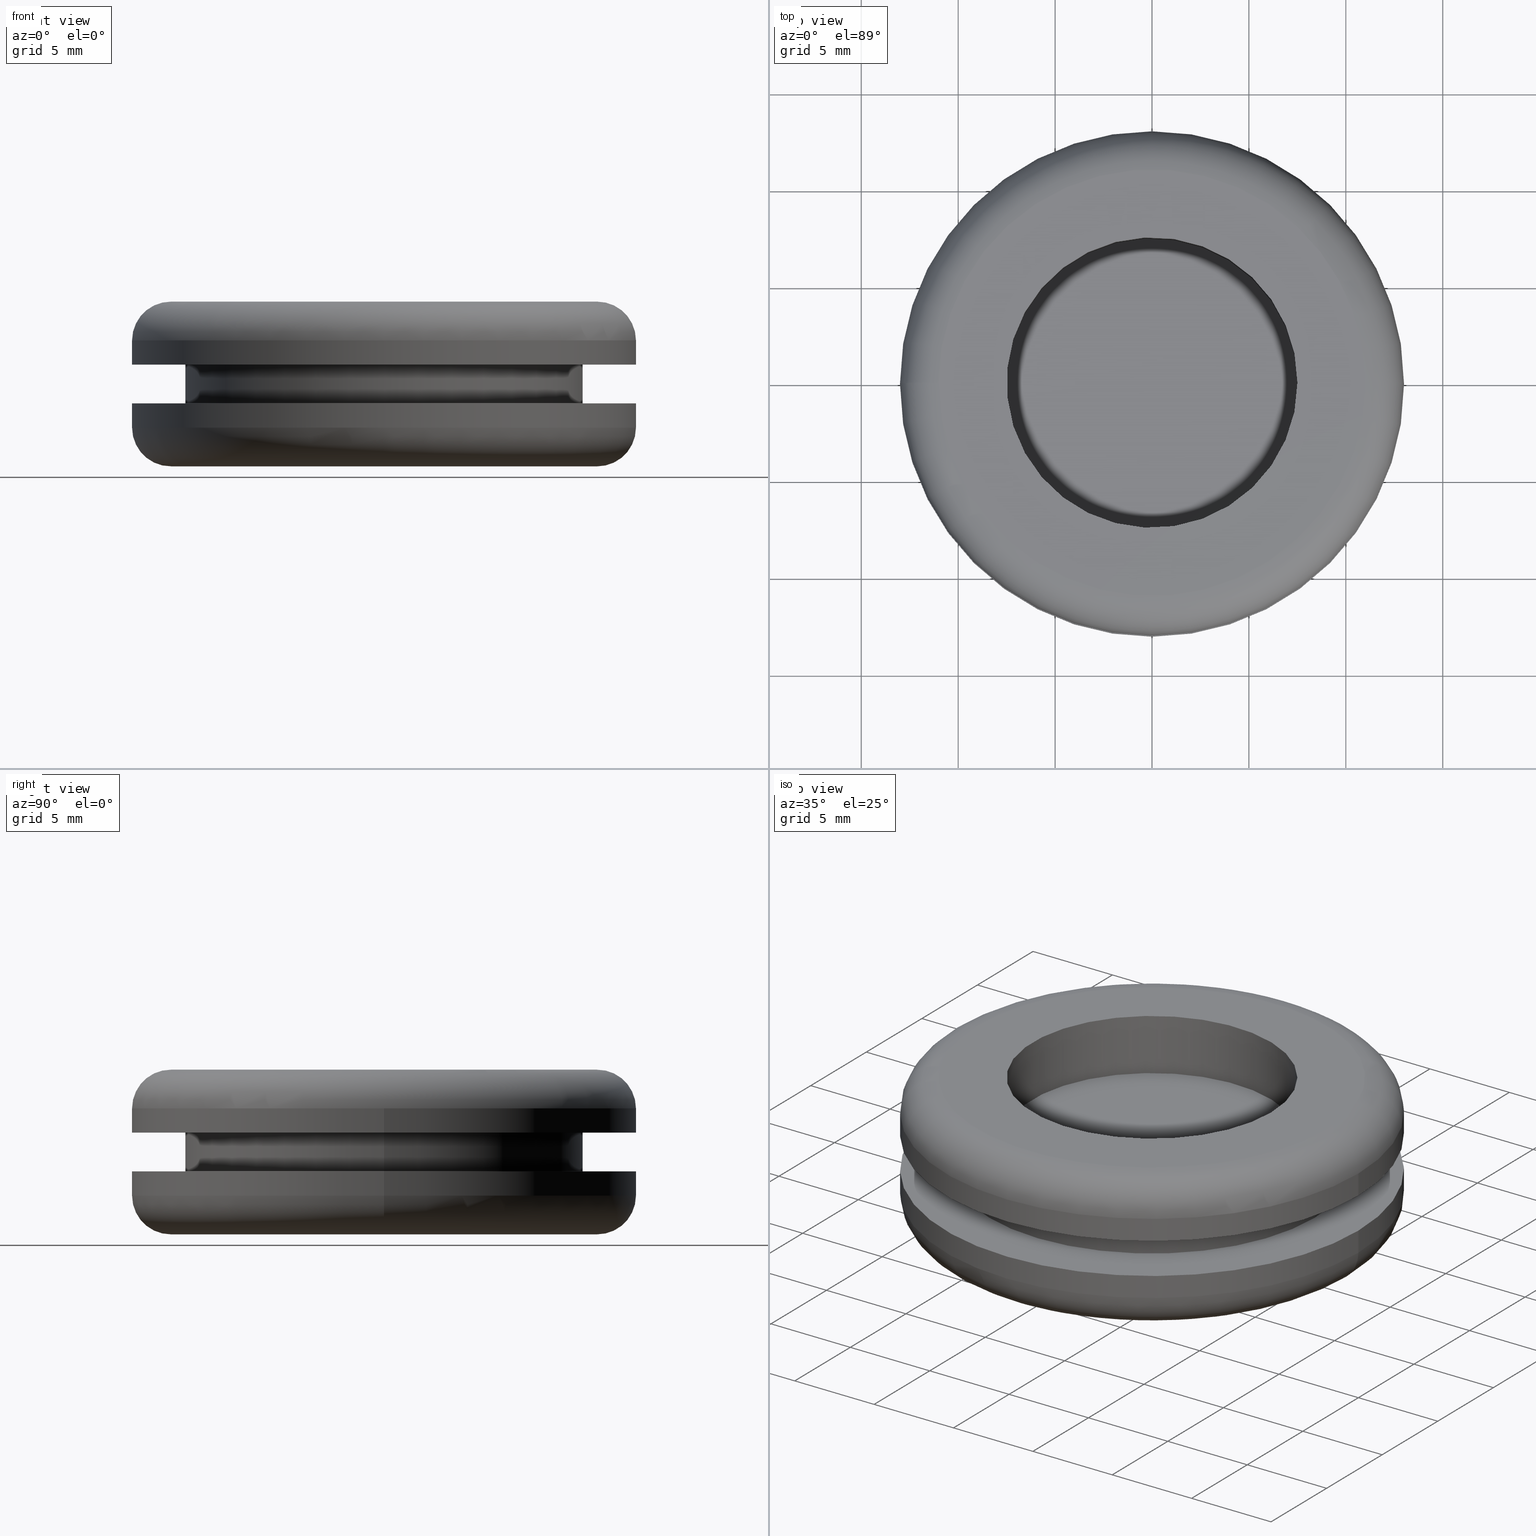
[diagram: canonical four-view strip — front | top / right | iso, engineering-drawing reading convention]
A machine part, canonical four-view strip (front | top / right | iso — engineering-drawing reading convention). The complete STEP part file that produces these views, byte-faithful:
ISO-10303-21;
HEADER;
/* Generated by software containing ST-Developer
 * from STEP Tools, Inc. (www.steptools.com) 
 */

FILE_DESCRIPTION(
/* description */ ('PRESSACAVO . IPC1015 GOMMA \X\D826'),
/* implementation_level */ '2;1');

FILE_NAME(
/* name */ 
'Q:\\Catalogo\\3_Profili e accessori MACAP\\Per Download Web e catalog
o artaceo\\ACCESSORI\\PAGINA 68\\CMEGC0000017 - XE45112G.stp',
/* time_stamp */ '2019-12-16T16:55:39+01:00',
/* author */ ('fzagni'),
/* organization */ (''),
/* preprocessor_version */ 'ST-DEVELOPER v17.2',
/* originating_system */ 'Autodesk Inventor 2019',
/* authorisation */ '');

FILE_SCHEMA (('AUTOMOTIVE_DESIGN { 1 0 10303 214 3 1 1 }'));
ENDSEC;

DATA;
#10=MECHANICAL_DESIGN_GEOMETRIC_PRESENTATION_REPRESENTATION('',(#13),#384);
#11=SHAPE_REPRESENTATION_RELATIONSHIP('SRR','None',#391,#12);
#12=ADVANCED_BREP_SHAPE_REPRESENTATION('',(#14),#383);
#13=STYLED_ITEM('',(#400),#14);
#14=MANIFOLD_SOLID_BREP('Solido1',#198);
#15=FACE_BOUND('',#54,.T.);
#16=FACE_BOUND('',#59,.T.);
#17=FACE_BOUND('',#62,.T.);
#18=FACE_BOUND('',#64,.T.);
#19=TOROIDAL_SURFACE('',#224,11.,2.);
#20=TOROIDAL_SURFACE('',#233,11.,2.);
#21=LINE('',#333,#26);
#22=LINE('',#348,#27);
#23=LINE('',#362,#28);
#24=LINE('',#372,#29);
#25=LINE('',#380,#30);
#26=VECTOR('',#263,7.5);
#27=VECTOR('',#282,13.);
#28=VECTOR('',#299,13.);
#29=VECTOR('',#310,10.25);
#30=VECTOR('',#323,7.5);
#31=CYLINDRICAL_SURFACE('',#222,7.5);
#32=CYLINDRICAL_SURFACE('',#230,13.);
#33=CYLINDRICAL_SURFACE('',#239,13.);
#34=CYLINDRICAL_SURFACE('',#243,10.25);
#35=CYLINDRICAL_SURFACE('',#250,7.5);
#36=FACE_OUTER_BOUND('',#49,.T.);
#37=FACE_OUTER_BOUND('',#50,.T.);
#38=FACE_OUTER_BOUND('',#51,.T.);
#39=FACE_OUTER_BOUND('',#52,.T.);
#40=FACE_OUTER_BOUND('',#53,.T.);
#41=FACE_OUTER_BOUND('',#55,.T.);
#42=FACE_OUTER_BOUND('',#56,.T.);
#43=FACE_OUTER_BOUND('',#57,.T.);
#44=FACE_OUTER_BOUND('',#58,.T.);
#45=FACE_OUTER_BOUND('',#60,.T.);
#46=FACE_OUTER_BOUND('',#61,.T.);
#47=FACE_OUTER_BOUND('',#63,.T.);
#48=FACE_OUTER_BOUND('',#65,.T.);
#49=EDGE_LOOP('',(#129));
#50=EDGE_LOOP('',(#130));
#51=EDGE_LOOP('',(#131,#132,#133,#134));
#52=EDGE_LOOP('',(#135,#136,#137,#138));
#53=EDGE_LOOP('',(#139));
#54=EDGE_LOOP('',(#140));
#55=EDGE_LOOP('',(#141,#142,#143,#144,#145));
#56=EDGE_LOOP('',(#146,#147,#148,#149,#150,#151));
#57=EDGE_LOOP('',(#152,#153,#154,#155,#156,#157));
#58=EDGE_LOOP('',(#158,#159));
#59=EDGE_LOOP('',(#160));
#60=EDGE_LOOP('',(#161,#162,#163,#164,#165,#166));
#61=EDGE_LOOP('',(#167,#168));
#62=EDGE_LOOP('',(#169,#170));
#63=EDGE_LOOP('',(#171,#172));
#64=EDGE_LOOP('',(#173,#174));
#65=EDGE_LOOP('',(#175,#176,#177,#178));
#66=CIRCLE('',#219,7.5);
#67=CIRCLE('',#221,7.5);
#68=CIRCLE('',#223,7.5);
#69=CIRCLE('',#225,11.);
#70=CIRCLE('',#226,2.);
#71=CIRCLE('',#227,13.);
#72=CIRCLE('',#229,7.5);
#73=CIRCLE('',#231,13.);
#74=CIRCLE('',#232,13.);
#75=CIRCLE('',#234,11.);
#76=CIRCLE('',#235,2.);
#77=CIRCLE('',#236,13.);
#78=CIRCLE('',#237,13.);
#79=CIRCLE('',#238,11.);
#80=CIRCLE('',#240,13.);
#81=CIRCLE('',#241,13.);
#82=CIRCLE('',#244,10.25);
#83=CIRCLE('',#245,10.25);
#84=CIRCLE('',#246,10.25);
#85=CIRCLE('',#247,10.25);
#86=VERTEX_POINT('',#326);
#87=VERTEX_POINT('',#329);
#88=VERTEX_POINT('',#332);
#89=VERTEX_POINT('',#336);
#90=VERTEX_POINT('',#338);
#91=VERTEX_POINT('',#342);
#92=VERTEX_POINT('',#345);
#93=VERTEX_POINT('',#346);
#94=VERTEX_POINT('',#351);
#95=VERTEX_POINT('',#352);
#96=VERTEX_POINT('',#354);
#97=VERTEX_POINT('',#356);
#98=VERTEX_POINT('',#361);
#99=VERTEX_POINT('',#363);
#100=VERTEX_POINT('',#368);
#101=VERTEX_POINT('',#369);
#102=VERTEX_POINT('',#371);
#103=VERTEX_POINT('',#373);
#104=EDGE_CURVE('',#86,#86,#66,.T.);
#105=EDGE_CURVE('',#87,#87,#67,.T.);
#106=EDGE_CURVE('',#87,#88,#21,.T.);
#107=EDGE_CURVE('',#88,#88,#68,.T.);
#108=EDGE_CURVE('',#89,#89,#69,.T.);
#109=EDGE_CURVE('',#89,#90,#70,.T.);
#110=EDGE_CURVE('',#90,#90,#71,.T.);
#111=EDGE_CURVE('',#91,#91,#72,.T.);
#112=EDGE_CURVE('',#92,#93,#73,.T.);
#113=EDGE_CURVE('',#93,#90,#22,.T.);
#114=EDGE_CURVE('',#93,#92,#74,.T.);
#115=EDGE_CURVE('',#94,#95,#75,.T.);
#116=EDGE_CURVE('',#95,#96,#76,.T.);
#117=EDGE_CURVE('',#96,#97,#77,.T.);
#118=EDGE_CURVE('',#97,#96,#78,.T.);
#119=EDGE_CURVE('',#95,#94,#79,.T.);
#120=EDGE_CURVE('',#97,#98,#23,.T.);
#121=EDGE_CURVE('',#98,#99,#80,.T.);
#122=EDGE_CURVE('',#99,#98,#81,.T.);
#123=EDGE_CURVE('',#100,#101,#82,.T.);
#124=EDGE_CURVE('',#101,#102,#24,.T.);
#125=EDGE_CURVE('',#103,#102,#83,.T.);
#126=EDGE_CURVE('',#102,#103,#84,.T.);
#127=EDGE_CURVE('',#101,#100,#85,.T.);
#128=EDGE_CURVE('',#91,#86,#25,.T.);
#129=ORIENTED_EDGE('',*,*,#104,.F.);
#130=ORIENTED_EDGE('',*,*,#105,.F.);
#131=ORIENTED_EDGE('',*,*,#105,.T.);
#132=ORIENTED_EDGE('',*,*,#106,.T.);
#133=ORIENTED_EDGE('',*,*,#107,.F.);
#134=ORIENTED_EDGE('',*,*,#106,.F.);
#135=ORIENTED_EDGE('',*,*,#108,.T.);
#136=ORIENTED_EDGE('',*,*,#109,.T.);
#137=ORIENTED_EDGE('',*,*,#110,.T.);
#138=ORIENTED_EDGE('',*,*,#109,.F.);
#139=ORIENTED_EDGE('',*,*,#108,.F.);
#140=ORIENTED_EDGE('',*,*,#111,.T.);
#141=ORIENTED_EDGE('',*,*,#112,.T.);
#142=ORIENTED_EDGE('',*,*,#113,.T.);
#143=ORIENTED_EDGE('',*,*,#110,.F.);
#144=ORIENTED_EDGE('',*,*,#113,.F.);
#145=ORIENTED_EDGE('',*,*,#114,.T.);
#146=ORIENTED_EDGE('',*,*,#115,.T.);
#147=ORIENTED_EDGE('',*,*,#116,.T.);
#148=ORIENTED_EDGE('',*,*,#117,.T.);
#149=ORIENTED_EDGE('',*,*,#118,.T.);
#150=ORIENTED_EDGE('',*,*,#116,.F.);
#151=ORIENTED_EDGE('',*,*,#119,.T.);
#152=ORIENTED_EDGE('',*,*,#118,.F.);
#153=ORIENTED_EDGE('',*,*,#120,.T.);
#154=ORIENTED_EDGE('',*,*,#121,.T.);
#155=ORIENTED_EDGE('',*,*,#122,.T.);
#156=ORIENTED_EDGE('',*,*,#120,.F.);
#157=ORIENTED_EDGE('',*,*,#117,.F.);
#158=ORIENTED_EDGE('',*,*,#115,.F.);
#159=ORIENTED_EDGE('',*,*,#119,.F.);
#160=ORIENTED_EDGE('',*,*,#107,.T.);
#161=ORIENTED_EDGE('',*,*,#123,.T.);
#162=ORIENTED_EDGE('',*,*,#124,.T.);
#163=ORIENTED_EDGE('',*,*,#125,.F.);
#164=ORIENTED_EDGE('',*,*,#126,.F.);
#165=ORIENTED_EDGE('',*,*,#124,.F.);
#166=ORIENTED_EDGE('',*,*,#127,.T.);
#167=ORIENTED_EDGE('',*,*,#112,.F.);
#168=ORIENTED_EDGE('',*,*,#114,.F.);
#169=ORIENTED_EDGE('',*,*,#123,.F.);
#170=ORIENTED_EDGE('',*,*,#127,.F.);
#171=ORIENTED_EDGE('',*,*,#122,.F.);
#172=ORIENTED_EDGE('',*,*,#121,.F.);
#173=ORIENTED_EDGE('',*,*,#125,.T.);
#174=ORIENTED_EDGE('',*,*,#126,.T.);
#175=ORIENTED_EDGE('',*,*,#111,.F.);
#176=ORIENTED_EDGE('',*,*,#128,.T.);
#177=ORIENTED_EDGE('',*,*,#104,.T.);
#178=ORIENTED_EDGE('',*,*,#128,.F.);
#179=PLANE('',#218);
#180=PLANE('',#220);
#181=PLANE('',#228);
#182=PLANE('',#242);
#183=PLANE('',#248);
#184=PLANE('',#249);
#185=ADVANCED_FACE('',(#36),#179,.F.);
#186=ADVANCED_FACE('',(#37),#180,.T.);
#187=ADVANCED_FACE('',(#38),#31,.F.);
#188=ADVANCED_FACE('',(#39),#19,.T.);
#189=ADVANCED_FACE('',(#40,#15),#181,.F.);
#190=ADVANCED_FACE('',(#41),#32,.T.);
#191=ADVANCED_FACE('',(#42),#20,.T.);
#192=ADVANCED_FACE('',(#43),#33,.T.);
#193=ADVANCED_FACE('',(#44,#16),#182,.T.);
#194=ADVANCED_FACE('',(#45),#34,.T.);
#195=ADVANCED_FACE('',(#46,#17),#183,.F.);
#196=ADVANCED_FACE('',(#47,#18),#184,.F.);
#197=ADVANCED_FACE('',(#48),#35,.F.);
#198=CLOSED_SHELL('',(#185,#186,#187,#188,#189,#190,#191,#192,#193,#194,
#195,#196,#197));
#199=DERIVED_UNIT_ELEMENT(#201,1.);
#200=DERIVED_UNIT_ELEMENT(#386,3.);
#201=(
MASS_UNIT()
NAMED_UNIT(*)
SI_UNIT($,.GRAM.)
);
#202=DERIVED_UNIT((#199,#200));
#203=MEASURE_REPRESENTATION_ITEM('density measure',
POSITIVE_RATIO_MEASURE(0.5),#202);
#204=PROPERTY_DEFINITION_REPRESENTATION(#209,#206);
#205=PROPERTY_DEFINITION_REPRESENTATION(#210,#207);
#206=REPRESENTATION('material name',(#208),#383);
#207=REPRESENTATION('density',(#203),#383);
#208=DESCRIPTIVE_REPRESENTATION_ITEM('PVC Nero','PVC Nero');
#209=PROPERTY_DEFINITION('material property','material name',#393);
#210=PROPERTY_DEFINITION('material property','density of part',#393);
#211=DATE_TIME_ROLE('creation_date');
#212=APPLIED_DATE_AND_TIME_ASSIGNMENT(#213,#211,(#393));
#213=DATE_AND_TIME(#214,#215);
#214=CALENDAR_DATE(2018,23,1);
#215=LOCAL_TIME(12,55,49.,#216);
#216=COORDINATED_UNIVERSAL_TIME_OFFSET(0,0,.BEHIND.);
#217=AXIS2_PLACEMENT_3D('placement',#324,#251,#252);
#218=AXIS2_PLACEMENT_3D('',#325,#253,#254);
#219=AXIS2_PLACEMENT_3D('',#327,#255,#256);
#220=AXIS2_PLACEMENT_3D('',#328,#257,#258);
#221=AXIS2_PLACEMENT_3D('',#330,#259,#260);
#222=AXIS2_PLACEMENT_3D('',#331,#261,#262);
#223=AXIS2_PLACEMENT_3D('',#334,#264,#265);
#224=AXIS2_PLACEMENT_3D('',#335,#266,#267);
#225=AXIS2_PLACEMENT_3D('',#337,#268,#269);
#226=AXIS2_PLACEMENT_3D('',#339,#270,#271);
#227=AXIS2_PLACEMENT_3D('',#340,#272,#273);
#228=AXIS2_PLACEMENT_3D('',#341,#274,#275);
#229=AXIS2_PLACEMENT_3D('',#343,#276,#277);
#230=AXIS2_PLACEMENT_3D('',#344,#278,#279);
#231=AXIS2_PLACEMENT_3D('',#347,#280,#281);
#232=AXIS2_PLACEMENT_3D('',#349,#283,#284);
#233=AXIS2_PLACEMENT_3D('',#350,#285,#286);
#234=AXIS2_PLACEMENT_3D('',#353,#287,#288);
#235=AXIS2_PLACEMENT_3D('',#355,#289,#290);
#236=AXIS2_PLACEMENT_3D('',#357,#291,#292);
#237=AXIS2_PLACEMENT_3D('',#358,#293,#294);
#238=AXIS2_PLACEMENT_3D('',#359,#295,#296);
#239=AXIS2_PLACEMENT_3D('',#360,#297,#298);
#240=AXIS2_PLACEMENT_3D('',#364,#300,#301);
#241=AXIS2_PLACEMENT_3D('',#365,#302,#303);
#242=AXIS2_PLACEMENT_3D('',#366,#304,#305);
#243=AXIS2_PLACEMENT_3D('',#367,#306,#307);
#244=AXIS2_PLACEMENT_3D('',#370,#308,#309);
#245=AXIS2_PLACEMENT_3D('',#374,#311,#312);
#246=AXIS2_PLACEMENT_3D('',#375,#313,#314);
#247=AXIS2_PLACEMENT_3D('',#376,#315,#316);
#248=AXIS2_PLACEMENT_3D('',#377,#317,#318);
#249=AXIS2_PLACEMENT_3D('',#378,#319,#320);
#250=AXIS2_PLACEMENT_3D('',#379,#321,#322);
#251=DIRECTION('axis',(0.,0.,1.));
#252=DIRECTION('refdir',(1.,0.,0.));
#253=DIRECTION('center_axis',(0.,0.,1.));
#254=DIRECTION('ref_axis',(1.,0.,0.));
#255=DIRECTION('center_axis',(0.,0.,1.));
#256=DIRECTION('ref_axis',(-1.,0.,0.));
#257=DIRECTION('center_axis',(0.,0.,1.));
#258=DIRECTION('ref_axis',(1.,0.,0.));
#259=DIRECTION('center_axis',(0.,0.,-1.));
#260=DIRECTION('ref_axis',(-1.,0.,0.));
#261=DIRECTION('center_axis',(0.,0.,1.));
#262=DIRECTION('ref_axis',(-1.,0.,0.));
#263=DIRECTION('',(0.,0.,1.));
#264=DIRECTION('center_axis',(0.,0.,-1.));
#265=DIRECTION('ref_axis',(-1.,0.,0.));
#266=DIRECTION('center_axis',(0.,0.,-1.));
#267=DIRECTION('ref_axis',(-1.,0.,0.));
#268=DIRECTION('center_axis',(0.,0.,1.));
#269=DIRECTION('ref_axis',(-1.,0.,0.));
#270=DIRECTION('center_axis',(-1.22464679914735E-16,-1.,0.));
#271=DIRECTION('ref_axis',(1.,-1.22464679914735E-16,0.));
#272=DIRECTION('center_axis',(0.,0.,-1.));
#273=DIRECTION('ref_axis',(-1.,0.,0.));
#274=DIRECTION('center_axis',(0.,0.,1.));
#275=DIRECTION('ref_axis',(1.,0.,0.));
#276=DIRECTION('center_axis',(0.,0.,1.));
#277=DIRECTION('ref_axis',(-1.,0.,0.));
#278=DIRECTION('center_axis',(0.,0.,1.));
#279=DIRECTION('ref_axis',(-1.,0.,0.));
#280=DIRECTION('center_axis',(0.,0.,-1.));
#281=DIRECTION('ref_axis',(-1.,0.,0.));
#282=DIRECTION('',(0.,0.,-1.));
#283=DIRECTION('center_axis',(0.,0.,-1.));
#284=DIRECTION('ref_axis',(-1.,0.,0.));
#285=DIRECTION('center_axis',(0.,0.,1.));
#286=DIRECTION('ref_axis',(1.,0.,0.));
#287=DIRECTION('center_axis',(0.,0.,-1.));
#288=DIRECTION('ref_axis',(-1.,0.,0.));
#289=DIRECTION('center_axis',(1.22464679914735E-16,-1.,0.));
#290=DIRECTION('ref_axis',(-1.,-1.22464679914735E-16,0.));
#291=DIRECTION('center_axis',(0.,0.,1.));
#292=DIRECTION('ref_axis',(-1.,0.,0.));
#293=DIRECTION('center_axis',(0.,0.,1.));
#294=DIRECTION('ref_axis',(-1.,0.,0.));
#295=DIRECTION('center_axis',(0.,0.,-1.));
#296=DIRECTION('ref_axis',(-1.,0.,0.));
#297=DIRECTION('center_axis',(0.,0.,1.));
#298=DIRECTION('ref_axis',(-1.,0.,0.));
#299=DIRECTION('',(0.,0.,-1.));
#300=DIRECTION('center_axis',(0.,0.,1.));
#301=DIRECTION('ref_axis',(-1.,0.,0.));
#302=DIRECTION('center_axis',(0.,0.,1.));
#303=DIRECTION('ref_axis',(-1.,0.,0.));
#304=DIRECTION('center_axis',(0.,0.,1.));
#305=DIRECTION('ref_axis',(1.,0.,0.));
#306=DIRECTION('center_axis',(0.,0.,1.));
#307=DIRECTION('ref_axis',(-1.,0.,0.));
#308=DIRECTION('center_axis',(0.,0.,1.));
#309=DIRECTION('ref_axis',(1.,0.,0.));
#310=DIRECTION('',(0.,0.,1.));
#311=DIRECTION('center_axis',(0.,0.,1.));
#312=DIRECTION('ref_axis',(1.,0.,0.));
#313=DIRECTION('center_axis',(0.,0.,1.));
#314=DIRECTION('ref_axis',(1.,0.,0.));
#315=DIRECTION('center_axis',(0.,0.,1.));
#316=DIRECTION('ref_axis',(1.,0.,0.));
#317=DIRECTION('center_axis',(0.,0.,-1.));
#318=DIRECTION('ref_axis',(-1.,0.,0.));
#319=DIRECTION('center_axis',(0.,0.,1.));
#320=DIRECTION('ref_axis',(1.,0.,0.));
#321=DIRECTION('center_axis',(0.,0.,1.));
#322=DIRECTION('ref_axis',(-1.,0.,0.));
#323=DIRECTION('',(0.,0.,1.));
#324=CARTESIAN_POINT('',(0.,0.,0.));
#325=CARTESIAN_POINT('Origin',(-3.23256652641189E-16,1.2335811384724E-16,
-1.));
#326=CARTESIAN_POINT('',(7.5,9.18485099360515E-16,-1.));
#327=CARTESIAN_POINT('Origin',(0.,0.,-1.));
#328=CARTESIAN_POINT('Origin',(-3.23256652641189E-16,1.2335811384724E-16,
1.));
#329=CARTESIAN_POINT('',(7.5,9.18485099360515E-16,1.));
#330=CARTESIAN_POINT('Origin',(0.,0.,1.));
#331=CARTESIAN_POINT('Origin',(0.,0.,0.));
#332=CARTESIAN_POINT('',(7.5,9.18485099360515E-16,4.25));
#333=CARTESIAN_POINT('',(7.5,9.18485099360515E-16,0.));
#334=CARTESIAN_POINT('Origin',(0.,0.,4.25));
#335=CARTESIAN_POINT('Origin',(0.,0.,-2.25));
#336=CARTESIAN_POINT('',(11.,1.34711147906209E-15,-4.25));
#337=CARTESIAN_POINT('Origin',(0.,0.,-4.25));
#338=CARTESIAN_POINT('',(13.,-1.59204083889156E-15,-2.25));
#339=CARTESIAN_POINT('Origin',(11.,-1.34711147906209E-15,-2.25));
#340=CARTESIAN_POINT('Origin',(0.,0.,-2.25));
#341=CARTESIAN_POINT('Origin',(-1.3267006990763E-16,0.,-4.25));
#342=CARTESIAN_POINT('',(7.5,9.18485099360515E-16,-4.25));
#343=CARTESIAN_POINT('Origin',(0.,0.,-4.25));
#344=CARTESIAN_POINT('Origin',(0.,0.,0.));
#345=CARTESIAN_POINT('',(-13.,0.,-1.));
#346=CARTESIAN_POINT('',(13.,1.59204083889156E-15,-1.));
#347=CARTESIAN_POINT('Origin',(0.,0.,-1.));
#348=CARTESIAN_POINT('',(13.,1.59204083889156E-15,0.));
#349=CARTESIAN_POINT('Origin',(0.,0.,-1.));
#350=CARTESIAN_POINT('Origin',(0.,0.,2.25));
#351=CARTESIAN_POINT('',(11.,-1.34711147906209E-15,4.25));
#352=CARTESIAN_POINT('',(-11.,-1.34711147906209E-15,4.25));
#353=CARTESIAN_POINT('Origin',(0.,0.,4.25));
#354=CARTESIAN_POINT('',(-13.,-1.59204083889156E-15,2.25));
#355=CARTESIAN_POINT('Origin',(-11.,-1.34711147906209E-15,2.25));
#356=CARTESIAN_POINT('',(13.,1.59204083889156E-15,2.25));
#357=CARTESIAN_POINT('Origin',(0.,0.,2.25));
#358=CARTESIAN_POINT('Origin',(0.,0.,2.25));
#359=CARTESIAN_POINT('Origin',(0.,0.,4.25));
#360=CARTESIAN_POINT('Origin',(0.,0.,0.));
#361=CARTESIAN_POINT('',(13.,1.59204083889156E-15,1.));
#362=CARTESIAN_POINT('',(13.,1.59204083889156E-15,0.));
#363=CARTESIAN_POINT('',(-13.,0.,1.));
#364=CARTESIAN_POINT('Origin',(0.,0.,1.));
#365=CARTESIAN_POINT('Origin',(0.,0.,1.));
#366=CARTESIAN_POINT('Origin',(-1.3267006990763E-16,0.,4.25));
#367=CARTESIAN_POINT('Origin',(0.,0.,0.));
#368=CARTESIAN_POINT('',(-10.25,0.,-1.));
#369=CARTESIAN_POINT('',(10.25,1.25526296912604E-15,-1.));
#370=CARTESIAN_POINT('Origin',(0.,0.,-1.));
#371=CARTESIAN_POINT('',(10.25,1.25526296912604E-15,1.));
#372=CARTESIAN_POINT('',(10.25,1.25526296912604E-15,0.));
#373=CARTESIAN_POINT('',(-10.25,0.,1.));
#374=CARTESIAN_POINT('Origin',(0.,0.,1.));
#375=CARTESIAN_POINT('Origin',(0.,0.,1.));
#376=CARTESIAN_POINT('Origin',(0.,0.,-1.));
#377=CARTESIAN_POINT('Origin',(-13.,0.,-1.));
#378=CARTESIAN_POINT('Origin',(-10.25,0.,1.));
#379=CARTESIAN_POINT('Origin',(0.,0.,0.));
#380=CARTESIAN_POINT('',(7.5,9.18485099360515E-16,0.));
#381=UNCERTAINTY_MEASURE_WITH_UNIT(LENGTH_MEASURE(0.01),#385,
'DISTANCE_ACCURACY_VALUE',
'Maximum model space distance between geometric entities at asserted c
onnectivities');
#382=UNCERTAINTY_MEASURE_WITH_UNIT(LENGTH_MEASURE(0.01),#385,
'DISTANCE_ACCURACY_VALUE',
'Maximum model space distance between geometric entities at asserted c
onnectivities');
#383=(
GEOMETRIC_REPRESENTATION_CONTEXT(3)
GLOBAL_UNCERTAINTY_ASSIGNED_CONTEXT((#381))
GLOBAL_UNIT_ASSIGNED_CONTEXT((#385,#387,#388))
REPRESENTATION_CONTEXT('','3D')
);
#384=(
GEOMETRIC_REPRESENTATION_CONTEXT(3)
GLOBAL_UNCERTAINTY_ASSIGNED_CONTEXT((#382))
GLOBAL_UNIT_ASSIGNED_CONTEXT((#385,#387,#388))
REPRESENTATION_CONTEXT('','3D')
);
#385=(
LENGTH_UNIT()
NAMED_UNIT(*)
SI_UNIT(.MILLI.,.METRE.)
);
#386=(
LENGTH_UNIT()
NAMED_UNIT(*)
SI_UNIT(.CENTI.,.METRE.)
);
#387=(
NAMED_UNIT(*)
PLANE_ANGLE_UNIT()
SI_UNIT($,.RADIAN.)
);
#388=(
NAMED_UNIT(*)
SI_UNIT($,.STERADIAN.)
SOLID_ANGLE_UNIT()
);
#389=SHAPE_DEFINITION_REPRESENTATION(#390,#391);
#390=PRODUCT_DEFINITION_SHAPE('',$,#393);
#391=SHAPE_REPRESENTATION('',(#217),#383);
#392=PRODUCT_DEFINITION_CONTEXT('part definition',#397,'design');
#393=PRODUCT_DEFINITION('CMEGC0000017','CMEGC0000017',#394,#392);
#394=PRODUCT_DEFINITION_FORMATION('A',$,#399);
#395=PRODUCT_RELATED_PRODUCT_CATEGORY('CMEGC0000017','CMEGC0000017',(#399));
#396=APPLICATION_PROTOCOL_DEFINITION('international standard',
'automotive_design',2009,#397);
#397=APPLICATION_CONTEXT(
'Core Data for Automotive Mechanical Design Process');
#398=PRODUCT_CONTEXT('part definition',#397,'mechanical');
#399=PRODUCT('CMEGC0000017','CMEGC0000017',
'PRESSACAVO . IPC1015 GOMMA \X\D826',(#398));
#400=PRESENTATION_STYLE_ASSIGNMENT((#401));
#401=SURFACE_STYLE_USAGE(.BOTH.,#404);
#402=SURFACE_STYLE_RENDERING_WITH_PROPERTIES($,#408,(#403));
#403=SURFACE_STYLE_TRANSPARENT(0.);
#404=SURFACE_SIDE_STYLE('',(#405,#402));
#405=SURFACE_STYLE_FILL_AREA(#406);
#406=FILL_AREA_STYLE('',(#407));
#407=FILL_AREA_STYLE_COLOUR('',#408);
#408=COLOUR_RGB('',0.317647058823529,0.305882352941176,0.254901960784314);
ENDSEC;
END-ISO-10303-21;
